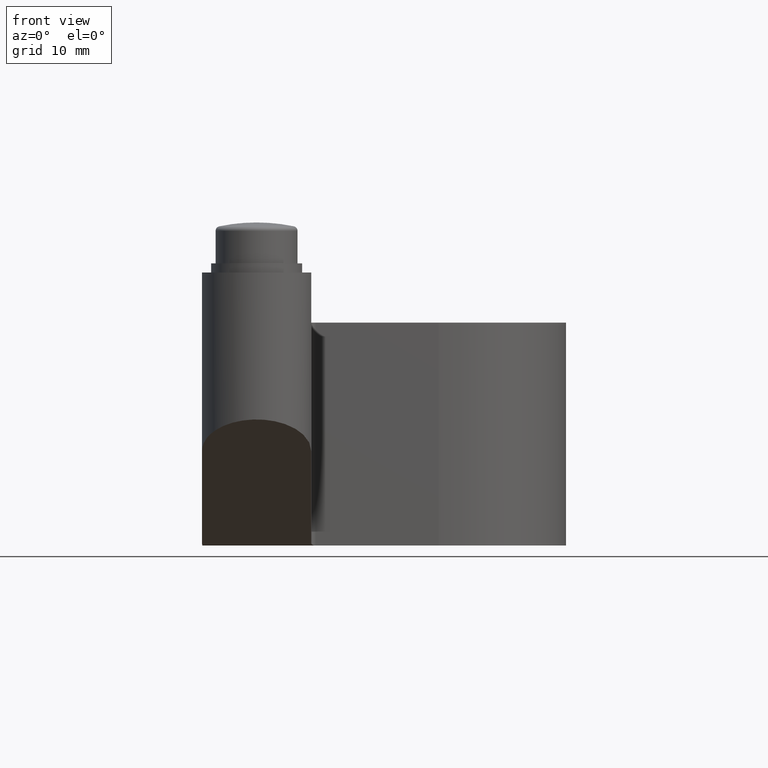
[diagram: clean part render]
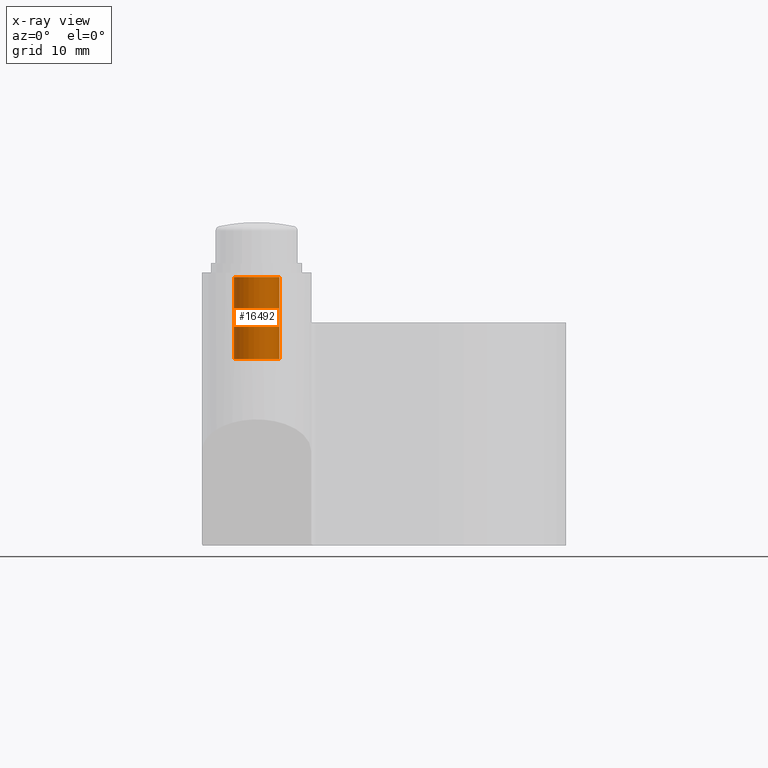
[diagram: x-ray — body ghosted, one internal face saturated and labeled with its STEP entity id]
A machine part, front view, then the same camera in x-ray: the body is ghosted and one INTERNAL B-rep face — a face not visible from any outside direction — is saturated and labeled: STEP entity #16492.
In plain terms, the highlighted cylindrical surface (edge-blend (fillet) strip) has radius 2.5 mm, axis along (0, 0, 1).
Its self-contained STEP definition (entity closure, byte-faithful):
#1270 = DIRECTION ( 'NONE',  ( -0.0000000000000000000, -0.0000000000000000000, 1.000000000000000000 ) ) ;
#1356 = AXIS2_PLACEMENT_3D ( 'NONE', #6311, #16528, #9045 ) ;
#2108 = CIRCLE ( 'NONE', #9923, 2.499999999999998700 ) ;
#2652 = CARTESIAN_POINT ( 'NONE',  ( -22.50000000000000000, -32.00000000000000000, 7.750000000000001800 ) ) ;
#2949 = VECTOR ( 'NONE', #1270, 1000.000000000000000 ) ;
#2958 = ORIENTED_EDGE ( 'NONE', *, *, #13879, .F. ) ;
#3421 = FACE_OUTER_BOUND ( 'NONE', #15696, .T. ) ;
#4210 = DIRECTION ( 'NONE',  ( 0.0000000000000000000, 0.0000000000000000000, 1.000000000000000000 ) ) ;
#4862 = ORIENTED_EDGE ( 'NONE', *, *, #6870, .T. ) ;
#5029 = LINE ( 'NONE', #2652, #2949 ) ;
#5612 = CARTESIAN_POINT ( 'NONE',  ( -17.50000000000000000, -32.00000000000000000, 17.25000000000000000 ) ) ;
#5842 = CIRCLE ( 'NONE', #1356, 2.499999999999998700 ) ;
#5928 = VERTEX_POINT ( 'NONE', #5612 ) ;
#6311 = CARTESIAN_POINT ( 'NONE',  ( -20.00000000000000000, -32.00000000000000000, 8.250000000000001800 ) ) ;
#6870 = EDGE_CURVE ( 'NONE', #19235, #5928, #2108, .T. ) ;
#7352 = DIRECTION ( 'NONE',  ( 1.000000000000000000, 0.0000000000000000000, 0.0000000000000000000 ) ) ;
#9045 = DIRECTION ( 'NONE',  ( 1.000000000000000000, 0.0000000000000000000, 0.0000000000000000000 ) ) ;
#9923 = AXIS2_PLACEMENT_3D ( 'NONE', #14806, #4210, #7352 ) ;
#11404 = VECTOR ( 'NONE', #12798, 1000.000000000000000 ) ;
#12539 = DIRECTION ( 'NONE',  ( -0.0000000000000000000, -0.0000000000000000000, 1.000000000000000000 ) ) ;
#12798 = DIRECTION ( 'NONE',  ( -0.0000000000000000000, -0.0000000000000000000, 1.000000000000000000 ) ) ;
#12973 = EDGE_CURVE ( 'NONE', #15281, #13667, #5842, .T. ) ;
#13667 = VERTEX_POINT ( 'NONE', #19284 ) ;
#13879 = EDGE_CURVE ( 'NONE', #15281, #5928, #15629, .T. ) ;
#14171 = CYLINDRICAL_SURFACE ( 'NONE', #15832, 2.499999999999998700 ) ;
#14309 = CARTESIAN_POINT ( 'NONE',  ( -17.50000000000000000, -32.00000000000000000, 8.250000000000001800 ) ) ;
#14318 = CARTESIAN_POINT ( 'NONE',  ( -17.50000000000000000, -32.00000000000000000, 7.750000000000001800 ) ) ;
#14806 = CARTESIAN_POINT ( 'NONE',  ( -20.00000000000000000, -32.00000000000000000, 17.25000000000000000 ) ) ;
#15281 = VERTEX_POINT ( 'NONE', #14309 ) ;
#15299 = CARTESIAN_POINT ( 'NONE',  ( -20.00000000000000000, -32.00000000000000000, 7.750000000000001800 ) ) ;
#15629 = LINE ( 'NONE', #14318, #11404 ) ;
#15696 = EDGE_LOOP ( 'NONE', ( #16038, #15716, #4862, #2958 ) ) ;
#15716 = ORIENTED_EDGE ( 'NONE', *, *, #17148, .T. ) ;
#15832 = AXIS2_PLACEMENT_3D ( 'NONE', #15299, #12539, #16940 ) ;
#16038 = ORIENTED_EDGE ( 'NONE', *, *, #12973, .T. ) ;
#16492 = ADVANCED_FACE ( 'NONE', ( #3421 ), #14171, .F. ) ;
#16528 = DIRECTION ( 'NONE',  ( -0.0000000000000000000, -0.0000000000000000000, -1.000000000000000000 ) ) ;
#16940 = DIRECTION ( 'NONE',  ( 1.000000000000000000, 0.0000000000000000000, 0.0000000000000000000 ) ) ;
#17148 = EDGE_CURVE ( 'NONE', #13667, #19235, #5029, .T. ) ;
#19202 = CARTESIAN_POINT ( 'NONE',  ( -22.50000000000000000, -32.00000000000000000, 17.25000000000000000 ) ) ;
#19235 = VERTEX_POINT ( 'NONE', #19202 ) ;
#19284 = CARTESIAN_POINT ( 'NONE',  ( -22.50000000000000000, -32.00000000000000000, 8.250000000000001800 ) ) ;